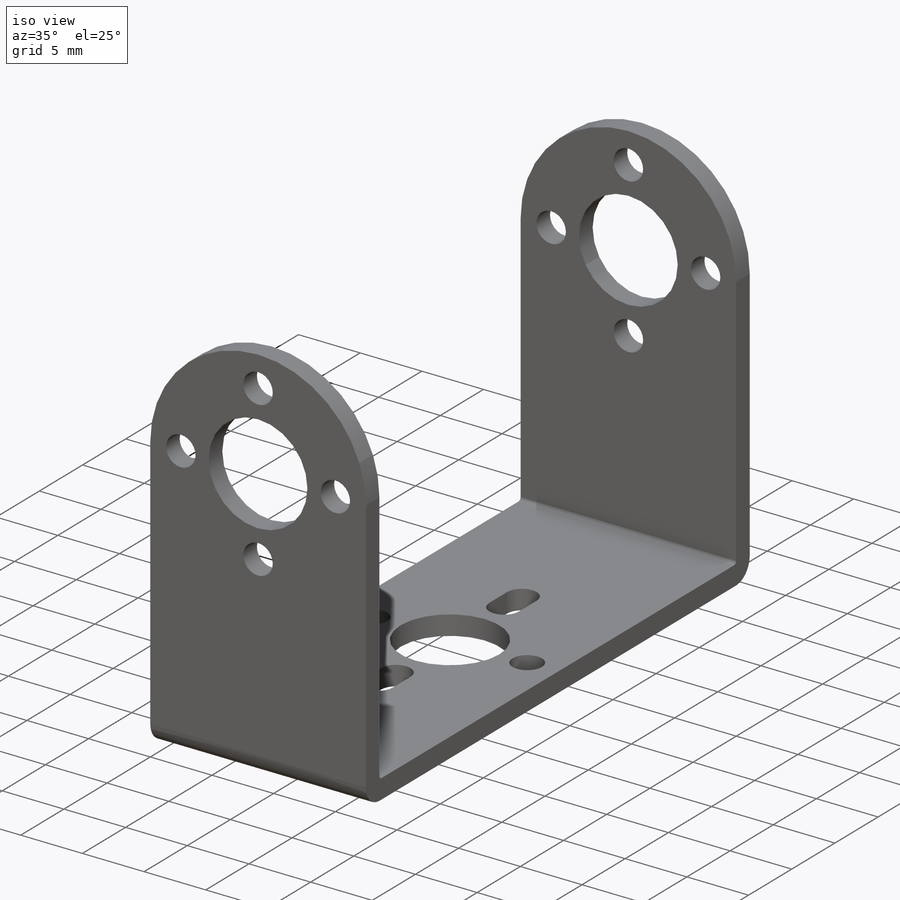
[diagram: iso view]
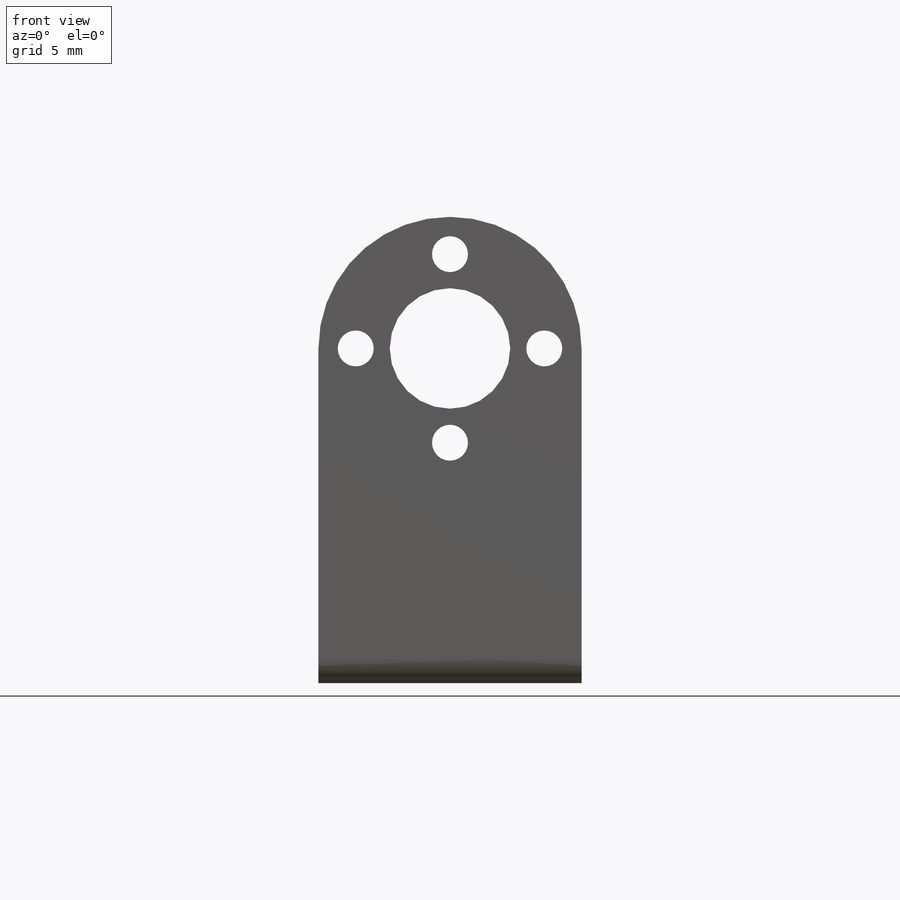
[diagram: front view]
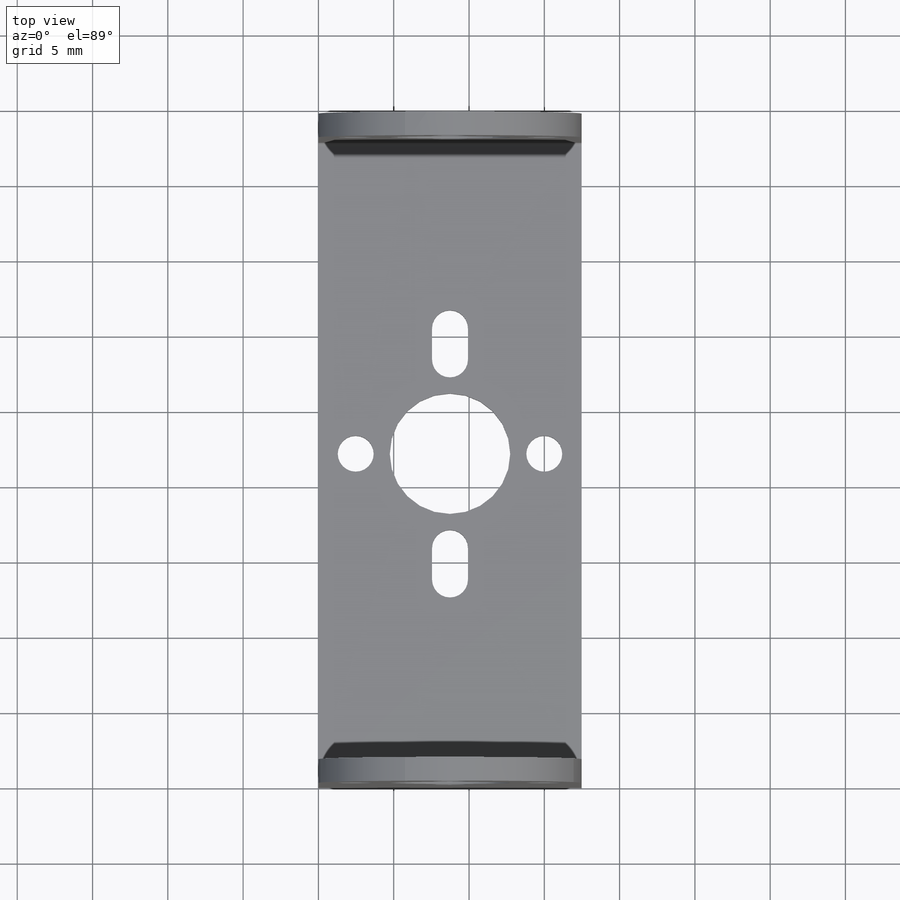
[diagram: top view]
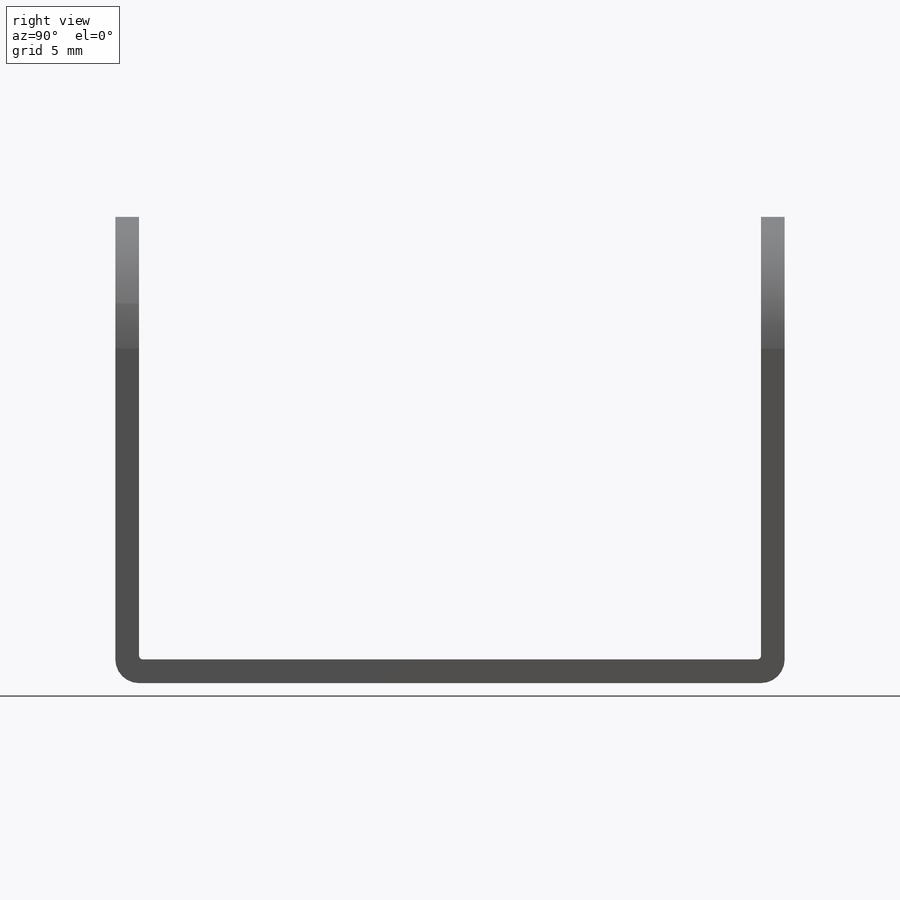
[diagram: right view]
SOLIDWORKS PART (.sldprt)
format: sldprt  version: not decoded by parser v0  size: 259,072 bytes
history: native  units: mm
features: sketch x5, cut_extrude x4, fillet x2, material x1, extrude x1 (+16 scaffold rows collapsed)
feature tree (29):
  scaffold x16  (default folders/planes/origin — collapsed)
  material  "Material <not specified>"
  sketch  "Sketch1"  dims[D1=30.9626mm D2=44.45mm]
  extrude  "Extrude1"  Depth=17.4752mm
  sketch  "Sketch2"  dims[D1=1.5748mm D2=1.5748mm D3=1.5748mm]
  cut_extrude  "Extrude2"  [1 undecoded]
  sketch  "Sketch3"
  cut_extrude  "Extrude3"  [1 undecoded]
  sketch  "Sketch4"  dims[D1=12.5222mm D2=8.7376mm]
  cut_extrude  "Extrude4"  [1 undecoded]
  sketch  "Sketch5"  dims[c1.D1=2.3876mm c1.D2=2.3876mm c2.D1=15.9639mm c2.D3=13.8938mm c2.D4=30.5816mm]
  cut_extrude  "Extrude5"  Depth=17.4752mm
  fillet  "Fillet1"  Radius=1.5748mm
  fillet  "Fillet2"  Radius=0.254mm
decode coverage: 8 of 12 modeling features carry decoded parameters
note: 3 parameter values undecoded
summary: no parameter record found for 3 features
note: suppression state not decoded; provenance and decode notes live in map.json
